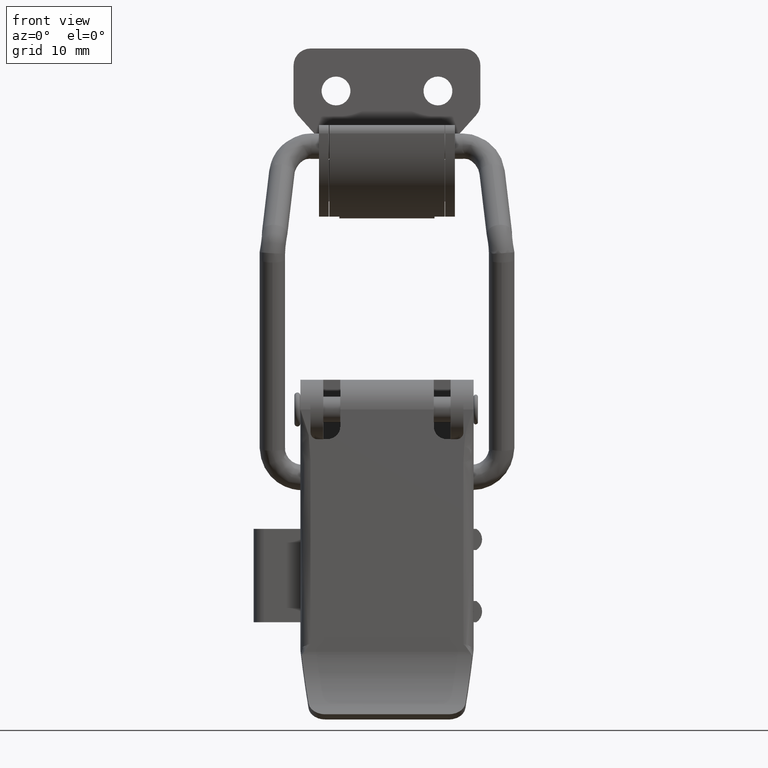
[diagram: clean part render]
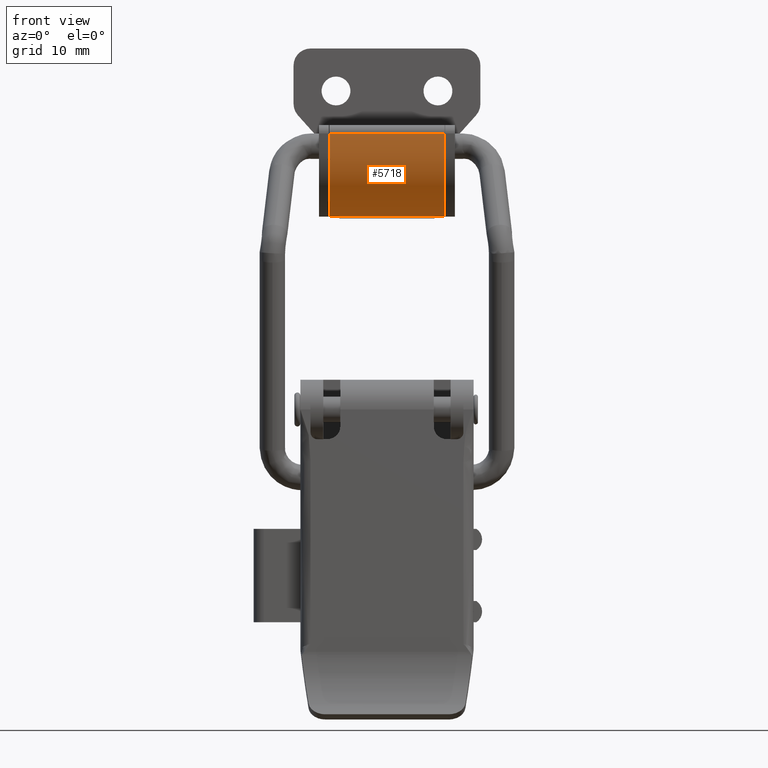
[diagram: same view with one face highlighted and labeled with its STEP entity id]
A machine part, front view. The second image highlights one B-rep face of the part: STEP entity #5718.
In plain terms, the highlighted cylindrical surface (partial cylindrical patch) has radius 10 mm, axis along (-1, 0, 0).
Its self-contained STEP definition (entity closure, byte-faithful):
#5261 = EDGE_CURVE ( 'NONE', #5262, #5263, #9654, .T. ) ;
#5262 = VERTEX_POINT ( 'NONE', #9649 ) ;
#5263 = VERTEX_POINT ( 'NONE', #9648 ) ;
#5270 = VERTEX_POINT ( 'NONE', #9693 ) ;
#5273 = EDGE_CURVE ( 'NONE', #5274, #5270, #9691, .T. ) ;
#5274 = VERTEX_POINT ( 'NONE', #9686 ) ;
#5717 = EDGE_CURVE ( 'NONE', #5796, #5790, #11210, .T. ) ;
#5718 = ADVANCED_FACE ( 'NONE', ( #11202 ), #11265, .T. ) ;
#5719 = EDGE_LOOP ( 'NONE', ( #5773, #5774, #5776, #5777, #5779, #5780 ) ) ;
#5773 = ORIENTED_EDGE ( 'NONE', *, *, #5273, .T. ) ;
#5774 = ORIENTED_EDGE ( 'NONE', *, *, #5775, .F. ) ;
#5775 = EDGE_CURVE ( 'NONE', #5790, #5270, #11347, .T. ) ;
#5776 = ORIENTED_EDGE ( 'NONE', *, *, #5717, .F. ) ;
#5777 = ORIENTED_EDGE ( 'NONE', *, *, #5778, .F. ) ;
#5778 = EDGE_CURVE ( 'NONE', #5263, #5796, #11343, .T. ) ;
#5779 = ORIENTED_EDGE ( 'NONE', *, *, #5261, .F. ) ;
#5780 = ORIENTED_EDGE ( 'NONE', *, *, #5781, .T. ) ;
#5781 = EDGE_CURVE ( 'NONE', #5262, #5274, #11339, .T. ) ;
#5790 = VERTEX_POINT ( 'NONE', #11382 ) ;
#5796 = VERTEX_POINT ( 'NONE', #11372 ) ;
#9648 = CARTESIAN_POINT ( 'NONE',  ( 0.7000000000001139800, -6.800000000000119700, -8.286745999999999100 ) ) ;
#9649 = CARTESIAN_POINT ( 'NONE',  ( -7.299992244349769300, -6.800000000000139300, 1.498758565214986000 ) ) ;
#9650 = DIRECTION ( 'NONE',  ( 0.0000000000000000000, 0.0000000000000000000, -1.000000000000000000 ) ) ;
#9651 = DIRECTION ( 'NONE',  ( 0.0000000000000000000, -1.000000000000000000, 0.0000000000000000000 ) ) ;
#9652 = CARTESIAN_POINT ( 'NONE',  ( 2.699999999999930500, -6.800000000000139300, 1.511213000000194900 ) ) ;
#9653 = AXIS2_PLACEMENT_3D ( 'NONE', #9652, #9651, #9650 ) ;
#9654 = CIRCLE ( 'NONE', #9653, 10.00000000000000000 ) ;
#9686 = CARTESIAN_POINT ( 'NONE',  ( -7.299992244349769300, 6.799999999999999800, 1.498758565214986000 ) ) ;
#9687 = DIRECTION ( 'NONE',  ( 0.0000000000000000000, 0.0000000000000000000, -1.000000000000000000 ) ) ;
#9688 = DIRECTION ( 'NONE',  ( 0.0000000000000000000, -1.000000000000000000, 0.0000000000000000000 ) ) ;
#9689 = CARTESIAN_POINT ( 'NONE',  ( 2.699999999999930500, 6.799999999999999800, 1.511213000000194900 ) ) ;
#9690 = AXIS2_PLACEMENT_3D ( 'NONE', #9689, #9688, #9687 ) ;
#9691 = CIRCLE ( 'NONE', #9690, 10.00000000000000000 ) ;
#9693 = CARTESIAN_POINT ( 'NONE',  ( 0.7000000000001139800, 6.799999999999999800, -8.286745999999910200 ) ) ;
#11202 = FACE_OUTER_BOUND ( 'NONE', #5719, .T. ) ;
#11203 = DIRECTION ( 'NONE',  ( 0.0000000000000000000, 1.000000000000000000, 0.0000000000000000000 ) ) ;
#11204 = VECTOR ( 'NONE', #11203, 1000.000000000000000 ) ;
#11205 = CARTESIAN_POINT ( 'NONE',  ( 0.6999999999999320100, -993.1999999999999300, -8.286745999999910200 ) ) ;
#11210 = LINE ( 'NONE', #11205, #11204 ) ;
#11261 = DIRECTION ( 'NONE',  ( 0.0000000000000000000, 0.0000000000000000000, 1.000000000000000000 ) ) ;
#11262 = DIRECTION ( 'NONE',  ( 0.0000000000000000000, 1.000000000000000000, 0.0000000000000000000 ) ) ;
#11263 = CARTESIAN_POINT ( 'NONE',  ( 2.699999999999930500, -993.1999999999999300, 1.511213000000194900 ) ) ;
#11264 = AXIS2_PLACEMENT_3D ( 'NONE', #11263, #11262, #11261 ) ;
#11265 = CYLINDRICAL_SURFACE ( 'NONE', #11264, 10.00000000000000000 ) ;
#11336 = DIRECTION ( 'NONE',  ( 0.0000000000000000000, 1.000000000000000000, 0.0000000000000000000 ) ) ;
#11337 = VECTOR ( 'NONE', #11336, 1000.000000000000000 ) ;
#11338 = CARTESIAN_POINT ( 'NONE',  ( -7.299992244349769300, -993.1999999999999300, 1.498758565214986000 ) ) ;
#11339 = LINE ( 'NONE', #11338, #11337 ) ;
#11340 = DIRECTION ( 'NONE',  ( 0.0000000000000000000, 1.000000000000000000, 0.0000000000000000000 ) ) ;
#11341 = VECTOR ( 'NONE', #11340, 1000.000000000000000 ) ;
#11342 = CARTESIAN_POINT ( 'NONE',  ( 0.6999999999999320100, -993.1999999999999300, -8.286745999999910200 ) ) ;
#11343 = LINE ( 'NONE', #11342, #11341 ) ;
#11344 = DIRECTION ( 'NONE',  ( 0.0000000000000000000, 1.000000000000000000, 0.0000000000000000000 ) ) ;
#11345 = VECTOR ( 'NONE', #11344, 1000.000000000000000 ) ;
#11346 = CARTESIAN_POINT ( 'NONE',  ( 0.7000000000001139800, -993.1999999999999300, -8.286745971132550200 ) ) ;
#11347 = LINE ( 'NONE', #11346, #11345 ) ;
#11372 = CARTESIAN_POINT ( 'NONE',  ( 0.7000000000001139800, -5.599999999999909900, -8.286745971132550200 ) ) ;
#11382 = CARTESIAN_POINT ( 'NONE',  ( 0.7000000000001139800, 5.599999999999909900, -8.286745971132550200 ) ) ;